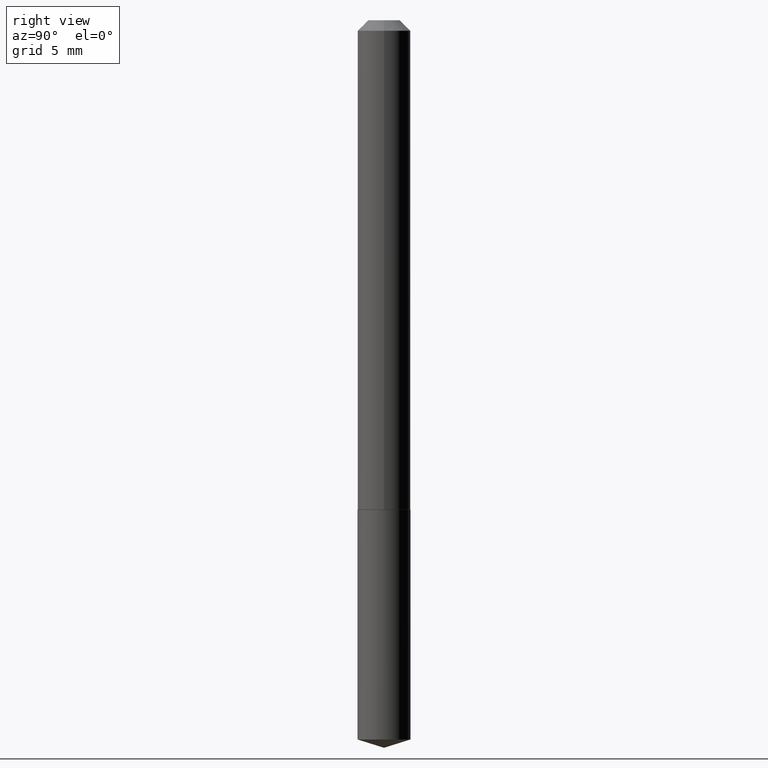
[diagram: clean part render]
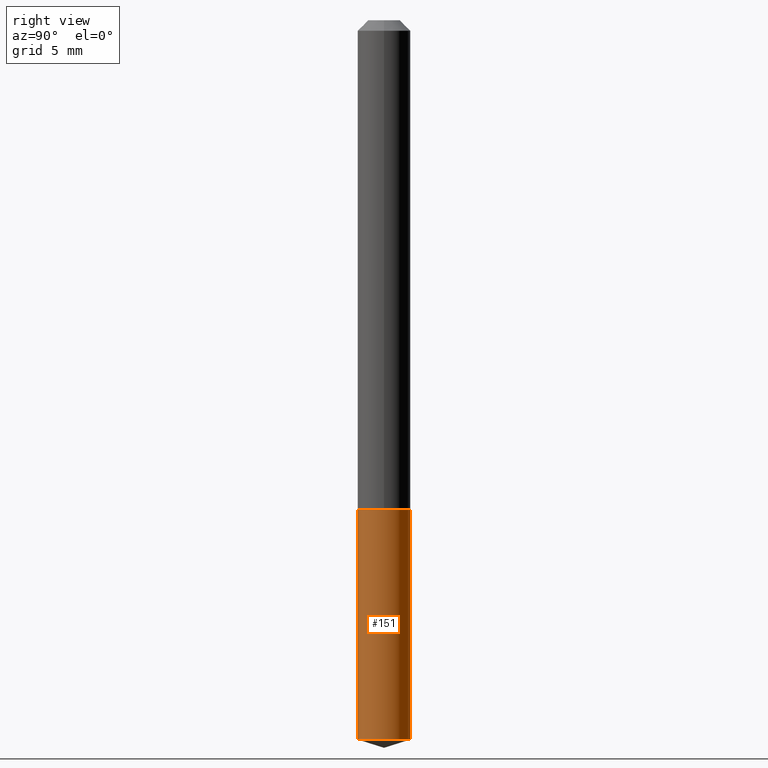
[diagram: same view with one face highlighted and labeled with its STEP entity id]
A machine part, right view. The second image highlights one B-rep face of the part: STEP entity #151.
In plain terms, the highlighted cylindrical surface (edge-blend (fillet) strip) has radius 2.0002 mm, axis along (-0, 0, 1).
Its self-contained STEP definition (entity closure, byte-faithful):
#9 = DIRECTION ( 'NONE',  ( -2.445414233920121595E-29, 3.491559489432707615E-15, 1.000000000000000000 ) ) ;
#14 = CIRCLE ( 'NONE', #223, 0.07875000000000000056 ) ;
#17 = EDGE_CURVE ( 'NONE', #144, #291, #42, .T. ) ;
#19 = LINE ( 'NONE', #377, #287 ) ;
#42 = LINE ( 'NONE', #183, #77 ) ;
#44 = DIRECTION ( 'NONE',  ( -2.445414233920121595E-29, 3.491559489432707615E-15, 1.000000000000000000 ) ) ;
#49 = AXIS2_PLACEMENT_3D ( 'NONE', #53, #181, #389 ) ;
#53 = CARTESIAN_POINT ( 'NONE',  ( 3.562558956850507139E-29, -5.086390014426694746E-15, -1.456800000000000095 ) ) ;
#61 = EDGE_CURVE ( 'NONE', #158, #383, #19, .T. ) ;
#70 = CARTESIAN_POINT ( 'NONE',  ( -5.499083108677577483E-16, -0.07875000000000507983, -1.456799999999999873 ) ) ;
#76 = DIRECTION ( 'NONE',  ( -2.445414233920121314E-29, 3.491559489432707615E-15, 1.000000000000000000 ) ) ;
#77 = VECTOR ( 'NONE', #371, 39.37007874015748143 ) ;
#85 = ORIENTED_EDGE ( 'NONE', *, *, #337, .F. ) ;
#91 = CARTESIAN_POINT ( 'NONE',  ( 5.595524044111309651E-16, 0.07874999999999247879, -2.140570220375780597 ) ) ;
#120 = CARTESIAN_POINT ( 'NONE',  ( -5.499083108677408864E-16, -0.07875000000000743905, -2.140570220375780153 ) ) ;
#128 = ORIENTED_EDGE ( 'NONE', *, *, #61, .F. ) ;
#141 = FACE_OUTER_BOUND ( 'NONE', #209, .T. ) ;
#144 = VERTEX_POINT ( 'NONE', #91 ) ;
#151 = ADVANCED_FACE ( 'NONE', ( #141 ), #384, .T. ) ;
#158 = VERTEX_POINT ( 'NONE', #120 ) ;
#181 = DIRECTION ( 'NONE',  ( -2.445414233920121595E-29, 3.491559489432707615E-15, 1.000000000000000000 ) ) ;
#183 = CARTESIAN_POINT ( 'NONE',  ( 5.595524044111143991E-16, 0.07874999999999490741, -1.456800000000000317 ) ) ;
#187 = DIRECTION ( 'NONE',  ( -6.982962677686264344E-15, -1.000000000000000000, 3.469013325287953293E-15 ) ) ;
#192 = AXIS2_PLACEMENT_3D ( 'NONE', #338, #9, #187 ) ;
#209 = EDGE_LOOP ( 'NONE', ( #321, #381, #85, #128 ) ) ;
#223 = AXIS2_PLACEMENT_3D ( 'NONE', #244, #44, #306 ) ;
#244 = CARTESIAN_POINT ( 'NONE',  ( 5.234660386488139142E-29, -7.473814415971244607E-15, -2.140570220375780153 ) ) ;
#287 = VECTOR ( 'NONE', #76, 39.37007874015748143 ) ;
#291 = VERTEX_POINT ( 'NONE', #361 ) ;
#306 = DIRECTION ( 'NONE',  ( -6.982962677686264344E-15, -1.000000000000000000, 3.469013325287953293E-15 ) ) ;
#321 = ORIENTED_EDGE ( 'NONE', *, *, #374, .T. ) ;
#337 = EDGE_CURVE ( 'NONE', #383, #291, #340, .T. ) ;
#338 = CARTESIAN_POINT ( 'NONE',  ( 3.562558956850507139E-29, -5.086390014426694746E-15, -1.456800000000000095 ) ) ;
#340 = CIRCLE ( 'NONE', #192, 0.07875000000000000056 ) ;
#361 = CARTESIAN_POINT ( 'NONE',  ( 5.595524044111311624E-16, 0.07874999999999490741, -1.456800000000000317 ) ) ;
#371 = DIRECTION ( 'NONE',  ( -2.445414233920121314E-29, 3.491559489432707615E-15, 1.000000000000000000 ) ) ;
#374 = EDGE_CURVE ( 'NONE', #158, #144, #14, .T. ) ;
#377 = CARTESIAN_POINT ( 'NONE',  ( -5.499083108677577483E-16, -0.07875000000000507983, -1.456799999999999873 ) ) ;
#381 = ORIENTED_EDGE ( 'NONE', *, *, #17, .T. ) ;
#383 = VERTEX_POINT ( 'NONE', #70 ) ;
#384 = CYLINDRICAL_SURFACE ( 'NONE', #49, 0.07875000000000000056 ) ;
#389 = DIRECTION ( 'NONE',  ( -6.982962677686264344E-15, -1.000000000000000000, 3.469013325287953293E-15 ) ) ;